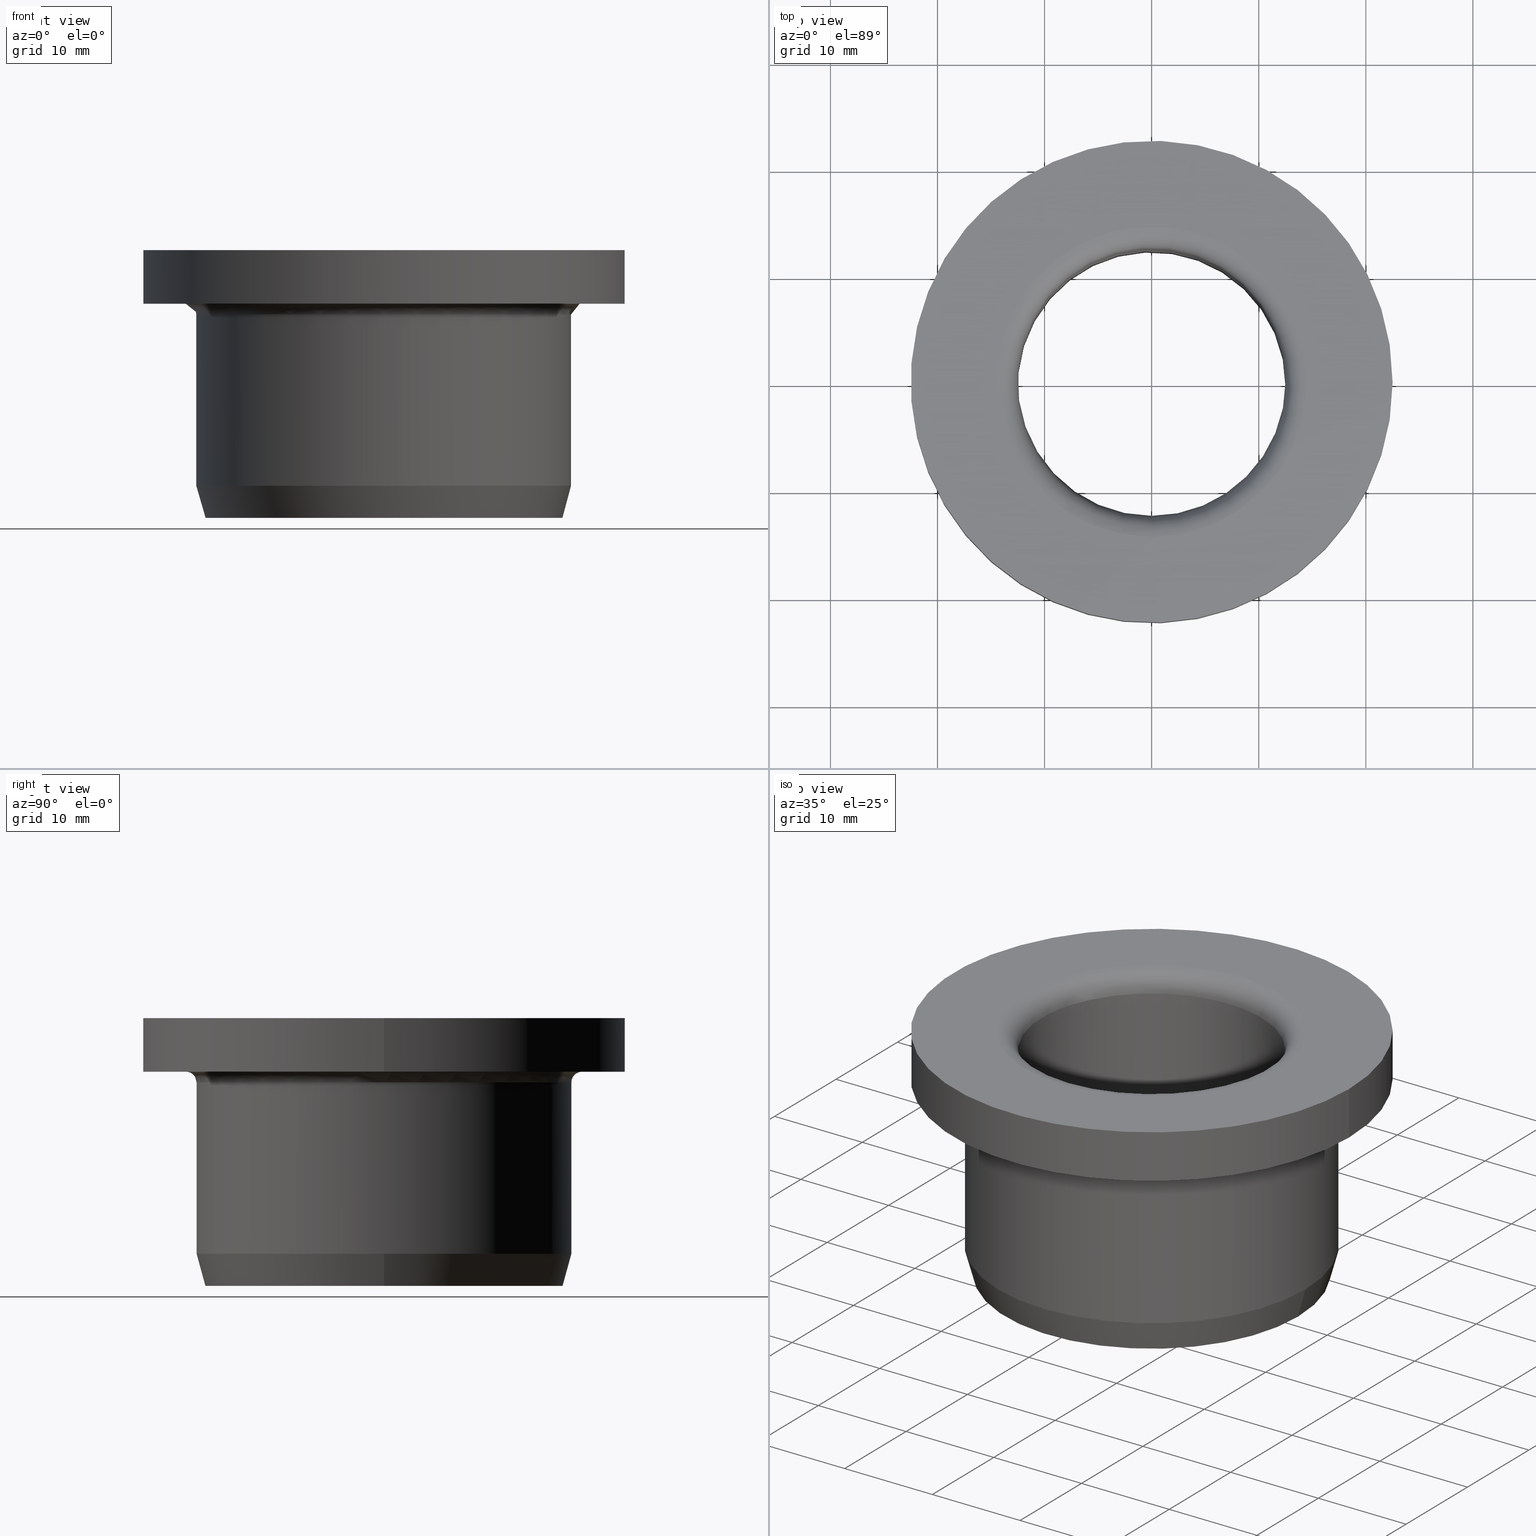
[diagram: canonical four-view strip — front | top / right | iso, engineering-drawing reading convention]
A machine part, canonical four-view strip (front | top / right | iso — engineering-drawing reading convention). The complete STEP part file that produces these views, byte-faithful:
ISO-10303-21;
HEADER;
FILE_DESCRIPTION(('STEP AP203'),'1');
FILE_NAME('621-025x35x25-45x05.stp','2018-05-21T10:01:22',(' '),(' '),'Spatial InterOp 3D',' ',' ');
FILE_SCHEMA(('CONFIG_CONTROL_DESIGN'));
ENDSEC;
DATA;
#1=DESIGN_CONTEXT('',#51,'design');
#2=APPLICATION_PROTOCOL_DEFINITION('INTERNATIONAL STANDARD','config_control_design',1994,#51);
#3=PRODUCT_CATEGORY_RELATIONSHIP('NONE','NONE',#52,#53);
#4=DATE_AND_TIME(#54,#55);
#5=DATE_TIME_ROLE('creation_date');
#6=DATE_TIME_ROLE('classification_date');
#7=PERSON_AND_ORGANIZATION_ROLE('creator');
#8=PERSON_AND_ORGANIZATION_ROLE('design_supplier');
#9=PERSON_AND_ORGANIZATION_ROLE('classification_officer');
#10=PERSON_AND_ORGANIZATION_ROLE('design_owner');
#11=APPROVAL_PERSON_ORGANIZATION(#56,#57,#58);
#12=APPROVAL_DATE_TIME(#4,#57);
#13=CC_DESIGN_APPROVAL(#57,(#59,#60,#61));
#14=CC_DESIGN_DATE_AND_TIME_ASSIGNMENT(#4,#5,(#61));
#15=CC_DESIGN_DATE_AND_TIME_ASSIGNMENT(#4,#6,(#59));
#16=CC_DESIGN_PERSON_AND_ORGANIZATION_ASSIGNMENT(#56,#10,(#62));
#17=CC_DESIGN_PERSON_AND_ORGANIZATION_ASSIGNMENT(#56,#7,(#61));
#18=CC_DESIGN_PERSON_AND_ORGANIZATION_ASSIGNMENT(#56,#7,(#60));
#19=CC_DESIGN_PERSON_AND_ORGANIZATION_ASSIGNMENT(#56,#8,(#60));
#20=CC_DESIGN_SECURITY_CLASSIFICATION(#59,(#60));
#21=CC_DESIGN_PERSON_AND_ORGANIZATION_ASSIGNMENT(#56,#9,(#59));
#22=SHAPE_DEFINITION_REPRESENTATION(#63,#64);
#23=DESIGN_CONTEXT('',#65,'design');
#24=APPLICATION_PROTOCOL_DEFINITION('INTERNATIONAL STANDARD','config_control_design',1994,#65);
#25=PRODUCT_CATEGORY_RELATIONSHIP('NONE','NONE',#66,#67);
#26=DATE_AND_TIME(#68,#69);
#27=DATE_TIME_ROLE('creation_date');
#28=DATE_TIME_ROLE('classification_date');
#29=PERSON_AND_ORGANIZATION_ROLE('creator');
#30=PERSON_AND_ORGANIZATION_ROLE('design_supplier');
#31=PERSON_AND_ORGANIZATION_ROLE('classification_officer');
#32=PERSON_AND_ORGANIZATION_ROLE('design_owner');
#33=APPROVAL_PERSON_ORGANIZATION(#70,#71,#72);
#34=APPROVAL_DATE_TIME(#26,#71);
#35=CC_DESIGN_APPROVAL(#71,(#73,#74,#75));
#36=CC_DESIGN_DATE_AND_TIME_ASSIGNMENT(#26,#27,(#75));
#37=CC_DESIGN_DATE_AND_TIME_ASSIGNMENT(#26,#28,(#73));
#38=CC_DESIGN_PERSON_AND_ORGANIZATION_ASSIGNMENT(#70,#32,(#76));
#39=CC_DESIGN_PERSON_AND_ORGANIZATION_ASSIGNMENT(#70,#29,(#75));
#40=CC_DESIGN_PERSON_AND_ORGANIZATION_ASSIGNMENT(#70,#29,(#74));
#41=CC_DESIGN_PERSON_AND_ORGANIZATION_ASSIGNMENT(#70,#30,(#74));
#42=CC_DESIGN_SECURITY_CLASSIFICATION(#73,(#74));
#43=CC_DESIGN_PERSON_AND_ORGANIZATION_ASSIGNMENT(#70,#31,(#73));
#44=CONTEXT_DEPENDENT_SHAPE_REPRESENTATION(#77,#78);
#45=SHAPE_DEFINITION_REPRESENTATION(#79,#80);
#46=SHAPE_REPRESENTATION_RELATIONSHIP('NONE','NONE',#80,#81);
#47= (GEOMETRIC_REPRESENTATION_CONTEXT(3)GLOBAL_UNCERTAINTY_ASSIGNED_CONTEXT((#84))GLOBAL_UNIT_ASSIGNED_CONTEXT((#86,#87,#88))REPRESENTATION_CONTEXT('NONE','WORKSPACE'));
#51=APPLICATION_CONTEXT('CONFIGURATION CONTROLLED 3D DESIGNS OF MECHANICAL PARTS AND ASSEMBLIES');
#52=PRODUCT_CATEGORY('part','NONE');
#53=PRODUCT_RELATED_PRODUCT_CATEGORY('detail',' ',(#62));
#54=CALENDAR_DATE(2018,21,4);
#55=LOCAL_TIME(12,1,22.0,#90);
#56=PERSON_AND_ORGANIZATION(#91,#92);
#57=APPROVAL(#93,'SOLID MODEL');
#58=APPROVAL_ROLE('APPROVED');
#59=SECURITY_CLASSIFICATION('','',#94);
#60=PRODUCT_DEFINITION_FORMATION_WITH_SPECIFIED_SOURCE(' ','NONE',#62,.NOT_KNOWN.);
#61=PRODUCT_DEFINITION('NONE','NONE',#60,#1);
#62=PRODUCT('','','PART--DESC',(#95));
#63=PRODUCT_DEFINITION_SHAPE('NONE','NONE',#61);
#64=SHAPE_REPRESENTATION('',(#96,#97),#98);
#65=APPLICATION_CONTEXT('CONFIGURATION CONTROLLED 3D DESIGNS OF MECHANICAL PARTS AND ASSEMBLIES');
#66=PRODUCT_CATEGORY('part','NONE');
#67=PRODUCT_RELATED_PRODUCT_CATEGORY('detail',' ',(#76));
#68=CALENDAR_DATE(2018,21,4);
#69=LOCAL_TIME(12,1,22.0,#99);
#70=PERSON_AND_ORGANIZATION(#100,#101);
#71=APPROVAL(#102,'SOLID MODEL');
#72=APPROVAL_ROLE('APPROVED');
#73=SECURITY_CLASSIFICATION('','',#103);
#74=PRODUCT_DEFINITION_FORMATION_WITH_SPECIFIED_SOURCE(' ','NONE',#76,.NOT_KNOWN.);
#75=PRODUCT_DEFINITION('621-025x35x25-45x5','621-025x35x25-45x5',#74,#23);
#76=PRODUCT('621-025x35x25-45x5','621-025x35x25-45x5','PART-621-025x35x25-45x5-DESC',(#104));
#77=(REPRESENTATION_RELATIONSHIP('','',#80,#64)REPRESENTATION_RELATIONSHIP_WITH_TRANSFORMATION(#107)SHAPE_REPRESENTATION_RELATIONSHIP());
#78=PRODUCT_DEFINITION_SHAPE('NAUO-PROD-DEF','NAUO-PROD-DEF',#109);
#79=PRODUCT_DEFINITION_SHAPE('NONE','NONE',#75);
#80=SHAPE_REPRESENTATION('621-025x35x25-45x5',(#96),#98);
#81=ADVANCED_BREP_SHAPE_REPRESENTATION('',(#110),#47);
#84=UNCERTAINTY_MEASURE_WITH_UNIT(LENGTH_MEASURE(1.0E-006),#86,'','');
#86= (CONVERSION_BASED_UNIT('METRE',#113)LENGTH_UNIT()NAMED_UNIT(#116));
#87= (NAMED_UNIT(#118)PLANE_ANGLE_UNIT()SI_UNIT($,.RADIAN.));
#88= (NAMED_UNIT(#118)SOLID_ANGLE_UNIT()SI_UNIT($,.STERADIAN.));
#90=COORDINATED_UNIVERSAL_TIME_OFFSET(1,0,.AHEAD.);
#91=PERSON('','UNSPECIFIED',$,$,$,$);
#92=ORGANIZATION('UNSPECIFIED','UNSPECIFIED','UNSPECIFIED');
#93=APPROVAL_STATUS('approved');
#94=SECURITY_CLASSIFICATION_LEVEL('unclassified');
#95=MECHANICAL_CONTEXT('',#51,'mechanical');
#96=AXIS2_PLACEMENT_3D('',#124,#125,#126);
#97=AXIS2_PLACEMENT_3D('',#127,#128,#129);
#98= (GEOMETRIC_REPRESENTATION_CONTEXT(3)GLOBAL_UNCERTAINTY_ASSIGNED_CONTEXT((#132))GLOBAL_UNIT_ASSIGNED_CONTEXT((#134,#135,#136))REPRESENTATION_CONTEXT('NONE','WORKSPACE'));
#99=COORDINATED_UNIVERSAL_TIME_OFFSET(1,0,.AHEAD.);
#100=PERSON('','UNSPECIFIED',$,$,$,$);
#101=ORGANIZATION('UNSPECIFIED','UNSPECIFIED','UNSPECIFIED');
#102=APPROVAL_STATUS('approved');
#103=SECURITY_CLASSIFICATION_LEVEL('unclassified');
#104=MECHANICAL_CONTEXT('',#65,'mechanical');
#107=ITEM_DEFINED_TRANSFORMATION('','',#96,#97);
#109=NEXT_ASSEMBLY_USAGE_OCCURRENCE('621-025x35x25-45x5','621-025x35x25-45x5','621-025x35x25-45x5',#61,#75,$);
#110=MANIFOLD_SOLID_BREP('',#138);
#113=LENGTH_MEASURE_WITH_UNIT(LENGTH_MEASURE(1.0),#139);
#116=DIMENSIONAL_EXPONENTS(1.0,0.0,0.0,0.0,0.0,0.0,0.0);
#118=DIMENSIONAL_EXPONENTS(0.0,0.0,0.0,0.0,0.0,0.0,0.0);
#124=CARTESIAN_POINT('',(0.0,0.0,0.0));
#125=DIRECTION('',(0.0,0.0,1.0));
#126=DIRECTION('',(1.0,0.0,0.0));
#127=CARTESIAN_POINT('',(0.0,0.0,0.0));
#128=DIRECTION('',(0.0,0.0,1.0));
#129=DIRECTION('',(1.0,0.0,0.0));
#132=UNCERTAINTY_MEASURE_WITH_UNIT(LENGTH_MEASURE(1.0E-006),#134,'','');
#134= (CONVERSION_BASED_UNIT('METRE',#142)LENGTH_UNIT()NAMED_UNIT(#145));
#135= (NAMED_UNIT(#147)PLANE_ANGLE_UNIT()SI_UNIT($,.RADIAN.));
#136= (NAMED_UNIT(#147)SOLID_ANGLE_UNIT()SI_UNIT($,.STERADIAN.));
#138=CLOSED_SHELL('',(#153,#154,#155,#156,#157,#158,#159,#160,#161));
#139= (NAMED_UNIT(#116)LENGTH_UNIT()SI_UNIT($,.METRE.));
#142=LENGTH_MEASURE_WITH_UNIT(LENGTH_MEASURE(1.0),#163);
#145=DIMENSIONAL_EXPONENTS(1.0,0.0,0.0,0.0,0.0,0.0,0.0);
#147=DIMENSIONAL_EXPONENTS(0.0,0.0,0.0,0.0,0.0,0.0,0.0);
#153=ADVANCED_FACE('',(#164,#165),#166,.T.);
#154=ADVANCED_FACE('',(#167,#168),#169,.T.);
#155=ADVANCED_FACE('',(#170,#171),#172,.T.);
#156=ADVANCED_FACE('',(#173,#174),#175,.T.);
#157=ADVANCED_FACE('',(#176,#177),#178,.F.);
#158=ADVANCED_FACE('',(#179,#180),#181,.T.);
#159=ADVANCED_FACE('',(#182,#183),#184,.T.);
#160=ADVANCED_FACE('',(#185,#186),#187,.F.);
#161=ADVANCED_FACE('',(#188,#189),#190,.T.);
#163= (NAMED_UNIT(#145)LENGTH_UNIT()SI_UNIT($,.METRE.));
#164=FACE_BOUND('',#192,.T.);
#165=FACE_OUTER_BOUND('',#193,.T.);
#166=PLANE('',#194);
#167=FACE_OUTER_BOUND('',#195,.T.);
#168=FACE_OUTER_BOUND('',#196,.T.);
#169=CYLINDRICAL_SURFACE('',#197,0.0175);
#170=FACE_BOUND('',#198,.T.);
#171=FACE_OUTER_BOUND('',#199,.T.);
#172=PLANE('',#200);
#173=FACE_OUTER_BOUND('',#201,.T.);
#174=FACE_BOUND('',#202,.T.);
#175=CONICAL_SURFACE('',#203,0.0166961524227067,0.261799387799145);
#176=FACE_OUTER_BOUND('',#204,.T.);
#177=FACE_OUTER_BOUND('',#205,.T.);
#178=CYLINDRICAL_SURFACE('',#206,0.0125);
#179=FACE_OUTER_BOUND('',#207,.T.);
#180=FACE_BOUND('',#208,.T.);
#181=PLANE('',#209);
#182=FACE_OUTER_BOUND('',#210,.T.);
#183=FACE_OUTER_BOUND('',#211,.T.);
#184=TOROIDAL_SURFACE('',#212,0.0145,0.002);
#185=FACE_OUTER_BOUND('',#213,.T.);
#186=FACE_OUTER_BOUND('',#214,.T.);
#187=TOROIDAL_SURFACE('',#215,0.0185,0.001);
#188=FACE_OUTER_BOUND('',#216,.T.);
#189=FACE_OUTER_BOUND('',#217,.T.);
#190=CYLINDRICAL_SURFACE('',#218,0.0225);
#192=EDGE_LOOP('',(#219));
#193=EDGE_LOOP('',(#220));
#194=AXIS2_PLACEMENT_3D('',#221,#222,#223);
#195=EDGE_LOOP('',(#224));
#196=EDGE_LOOP('',(#225));
#197=AXIS2_PLACEMENT_3D('',#226,#227,#228);
#198=EDGE_LOOP('',(#229));
#199=EDGE_LOOP('',(#230));
#200=AXIS2_PLACEMENT_3D('',#231,#232,#233);
#201=EDGE_LOOP('',(#234));
#202=EDGE_LOOP('',(#235));
#203=AXIS2_PLACEMENT_3D('',#236,#237,#238);
#204=EDGE_LOOP('',(#239));
#205=EDGE_LOOP('',(#240));
#206=AXIS2_PLACEMENT_3D('',#241,#242,#243);
#207=EDGE_LOOP('',(#244));
#208=EDGE_LOOP('',(#245));
#209=AXIS2_PLACEMENT_3D('',#246,#247,#248);
#210=EDGE_LOOP('',(#249));
#211=EDGE_LOOP('',(#250));
#212=AXIS2_PLACEMENT_3D('',#251,#252,#253);
#213=EDGE_LOOP('',(#254));
#214=EDGE_LOOP('',(#255));
#215=AXIS2_PLACEMENT_3D('',#256,#257,#258);
#216=EDGE_LOOP('',(#259));
#217=EDGE_LOOP('',(#260));
#218=AXIS2_PLACEMENT_3D('',#261,#262,#263);
#219=ORIENTED_EDGE('',*,*,#264,.T.);
#220=ORIENTED_EDGE('',*,*,#265,.F.);
#221=CARTESIAN_POINT('',(0.0225,0.0,0.025));
#222=DIRECTION('',(0.0,6.12323399573677E-017,1.0));
#223=DIRECTION('',(0.0,-1.0,6.12323399573677E-017));
#224=ORIENTED_EDGE('',*,*,#266,.T.);
#225=ORIENTED_EDGE('',*,*,#267,.F.);
#226=CARTESIAN_POINT('',(0.0,0.0,3.40872898583923E-020));
#227=DIRECTION('',(0.0,-6.12323399573677E-017,-1.0));
#228=DIRECTION('',(0.0,1.0,-6.12323399573677E-017));
#229=ORIENTED_EDGE('',*,*,#268,.T.);
#230=ORIENTED_EDGE('',*,*,#269,.T.);
#231=CARTESIAN_POINT('',(0.0175,0.0,0.02));
#232=DIRECTION('',(0.0,-6.12323399573677E-017,-1.0));
#233=DIRECTION('',(0.0,1.0,-6.12323399573677E-017));
#234=ORIENTED_EDGE('',*,*,#267,.T.);
#235=ORIENTED_EDGE('',*,*,#270,.F.);
#236=CARTESIAN_POINT('',(0.0,0.0,-3.74113416384991E-020));
#237=DIRECTION('',(-0.0,6.12323399573677E-017,1.0));
#238=DIRECTION('',(0.0,-1.0,6.12323399573677E-017));
#239=ORIENTED_EDGE('',*,*,#271,.T.);
#240=ORIENTED_EDGE('',*,*,#272,.T.);
#241=CARTESIAN_POINT('',(0.0,0.0,3.40872898583923E-020));
#242=DIRECTION('',(0.0,-6.12323399573677E-017,-1.0));
#243=DIRECTION('',(0.0,1.0,-6.12323399573677E-017));
#244=ORIENTED_EDGE('',*,*,#270,.T.);
#245=ORIENTED_EDGE('',*,*,#272,.F.);
#246=CARTESIAN_POINT('',(0.0125,0.0,-1.66202589005343E-021));
#247=DIRECTION('',(0.0,-6.12323399573677E-017,-1.0));
#248=DIRECTION('',(0.0,1.0,-6.12323399573677E-017));
#249=ORIENTED_EDGE('',*,*,#271,.F.);
#250=ORIENTED_EDGE('',*,*,#264,.F.);
#251=CARTESIAN_POINT('',(0.0,1.40834381901946E-018,0.023));
#252=DIRECTION('',(0.0,6.12323399573677E-017,1.0));
#253=DIRECTION('',(0.0,-1.0,6.12323399573677E-017));
#254=ORIENTED_EDGE('',*,*,#268,.F.);
#255=ORIENTED_EDGE('',*,*,#266,.F.);
#256=CARTESIAN_POINT('',(0.0,1.16341445918998E-018,0.019));
#257=DIRECTION('',(0.0,-6.12323399573677E-017,-1.0));
#258=DIRECTION('',(0.0,1.0,-6.12323399573677E-017));
#259=ORIENTED_EDGE('',*,*,#265,.T.);
#260=ORIENTED_EDGE('',*,*,#269,.F.);
#261=CARTESIAN_POINT('',(0.0,0.0,3.40872898583923E-020));
#262=DIRECTION('',(0.0,-6.12323399573677E-017,-1.0));
#263=DIRECTION('',(0.0,1.0,-6.12323399573677E-017));
#264=EDGE_CURVE('',#273,#273,#274,.F.);
#265=EDGE_CURVE('',#275,#275,#276,.T.);
#266=EDGE_CURVE('',#277,#277,#278,.T.);
#267=EDGE_CURVE('',#279,#279,#280,.T.);
#268=EDGE_CURVE('',#281,#281,#282,.F.);
#269=EDGE_CURVE('',#283,#283,#284,.T.);
#270=EDGE_CURVE('',#285,#285,#286,.T.);
#271=EDGE_CURVE('',#287,#287,#288,.T.);
#272=EDGE_CURVE('',#289,#289,#290,.T.);
#273=VERTEX_POINT('',#291);
#274=CIRCLE('',#292,0.0145);
#275=VERTEX_POINT('',#293);
#276=CIRCLE('',#294,0.0225);
#277=VERTEX_POINT('',#295);
#278=CIRCLE('',#296,0.0175);
#279=VERTEX_POINT('',#297);
#280=CIRCLE('',#298,0.0175);
#281=VERTEX_POINT('',#299);
#282=CIRCLE('',#300,0.0185);
#283=VERTEX_POINT('',#301);
#284=CIRCLE('',#302,0.0225);
#285=VERTEX_POINT('',#303);
#286=CIRCLE('',#304,0.0166961524227067);
#287=VERTEX_POINT('',#305);
#288=CIRCLE('',#306,0.0125);
#289=VERTEX_POINT('',#307);
#290=CIRCLE('',#308,0.0125);
#291=CARTESIAN_POINT('',(0.0,-0.0145,0.025));
#292=AXIS2_PLACEMENT_3D('',#309,#310,#311);
#293=CARTESIAN_POINT('',(0.0225,0.0,0.025));
#294=AXIS2_PLACEMENT_3D('',#312,#313,#314);
#295=CARTESIAN_POINT('',(0.0,0.0175,0.019));
#296=AXIS2_PLACEMENT_3D('',#315,#316,#317);
#297=CARTESIAN_POINT('',(0.0175,0.0,0.003));
#298=AXIS2_PLACEMENT_3D('',#318,#319,#320);
#299=CARTESIAN_POINT('',(0.0,0.0185,0.02));
#300=AXIS2_PLACEMENT_3D('',#321,#322,#323);
#301=CARTESIAN_POINT('',(0.0225,0.0,0.02));
#302=AXIS2_PLACEMENT_3D('',#324,#325,#326);
#303=CARTESIAN_POINT('',(0.0166961524227067,0.0,-3.74113416384991E-020));
#304=AXIS2_PLACEMENT_3D('',#327,#328,#329);
#305=CARTESIAN_POINT('',(0.0,-0.0125,0.023));
#306=AXIS2_PLACEMENT_3D('',#330,#331,#332);
#307=CARTESIAN_POINT('',(0.0125,0.0,3.40872898583923E-020));
#308=AXIS2_PLACEMENT_3D('',#333,#334,#335);
#309=CARTESIAN_POINT('',(0.0,1.53080849893419E-018,0.025));
#310=DIRECTION('',(0.0,6.12323399573677E-017,1.0));
#311=DIRECTION('',(0.0,-1.0,6.12323399573677E-017));
#312=CARTESIAN_POINT('',(0.0,0.0,0.025));
#313=DIRECTION('',(0.0,-6.12323399573677E-017,-1.0));
#314=DIRECTION('',(0.0,1.0,-6.12323399573677E-017));
#315=CARTESIAN_POINT('',(0.0,1.16341445918998E-018,0.019));
#316=DIRECTION('',(0.0,-6.12323399573677E-017,-1.0));
#317=DIRECTION('',(0.0,1.0,-6.12323399573677E-017));
#318=CARTESIAN_POINT('',(0.0,0.0,0.003));
#319=DIRECTION('',(0.0,-6.12323399573677E-017,-1.0));
#320=DIRECTION('',(0.0,1.0,-6.12323399573677E-017));
#321=CARTESIAN_POINT('',(0.0,1.22464679914735E-018,0.02));
#322=DIRECTION('',(0.0,-6.12323399573677E-017,-1.0));
#323=DIRECTION('',(0.0,1.0,-6.12323399573677E-017));
#324=CARTESIAN_POINT('',(0.0,0.0,0.02));
#325=DIRECTION('',(0.0,-6.12323399573677E-017,-1.0));
#326=DIRECTION('',(0.0,1.0,-6.12323399573677E-017));
#327=CARTESIAN_POINT('',(0.0,0.0,-3.74113416384991E-020));
#328=DIRECTION('',(0.0,-6.12323399573677E-017,-1.0));
#329=DIRECTION('',(0.0,1.0,-6.12323399573677E-017));
#330=CARTESIAN_POINT('',(0.0,1.40834381901946E-018,0.023));
#331=DIRECTION('',(0.0,6.12323399573677E-017,1.0));
#332=DIRECTION('',(0.0,-1.0,6.12323399573677E-017));
#333=CARTESIAN_POINT('',(0.0,0.0,3.40872898583923E-020));
#334=DIRECTION('',(0.0,-6.12323399573677E-017,-1.0));
#335=DIRECTION('',(0.0,1.0,-6.12323399573677E-017));
ENDSEC;
END-ISO-10303-21;
